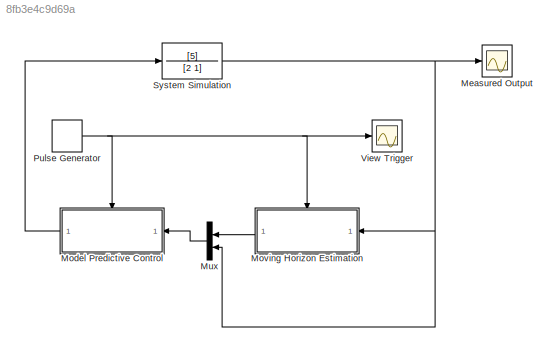
MODEL slx_8fb3e4c9d69a
KIND model
BLOCK [Scope] Measured Output
  DataFormat = StructureWithTime
  Floating = off
  NumInputPorts = 1
  Ports = [1]
  SampleTime = 0
  SaveName = ScopeData1
  ShowLegends = off
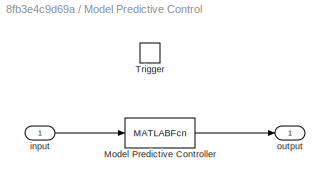
BLOCK [SubSystem] Model Predictive Control
  FunctionWithSeparateData = off
  MaskHideContents = off
  MinAlgLoopOccurrences = off
  Opaque = off
  Ports = [1, 1, 0, 1]
  PropExecContextOutsideSubsystem = off
  RTWSystemCode = Auto
  RequestExecContextInheritance = off
  TreatAsAtomicUnit = on
BLOCK [MATLABFcn] Model Predictive Control/Model Predictive Controller
  MATLABFcn = controller
  Ports = [1, 1]
BLOCK [TriggerPort] Model Predictive Control/Trigger
  Ports = []
  StatesWhenEnabling = held
BLOCK [Inport] Model Predictive Control/input
  IconDisplay = Port number
  PortDimensions = 2
BLOCK [Outport] Model Predictive Control/output
  IconDisplay = Port number
  PortDimensions = 1
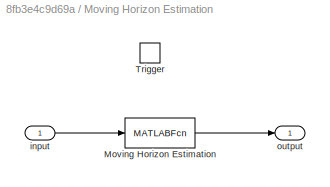
BLOCK [SubSystem] Moving Horizon Estimation
  FunctionWithSeparateData = off
  MaskHideContents = off
  MinAlgLoopOccurrences = off
  Opaque = off
  Ports = [1, 1, 0, 1]
  PropExecContextOutsideSubsystem = off
  RTWSystemCode = Auto
  RequestExecContextInheritance = off
  TreatAsAtomicUnit = on
BLOCK [MATLABFcn] Moving Horizon Estimation/Moving Horizon Estimation
  MATLABFcn = estimator
  Ports = [1, 1]
BLOCK [TriggerPort] Moving Horizon Estimation/Trigger
  Ports = []
  StatesWhenEnabling = held
BLOCK [Inport] Moving Horizon Estimation/input
  IconDisplay = Port number
  PortDimensions = 1
BLOCK [Outport] Moving Horizon Estimation/output
  IconDisplay = Port number
  PortDimensions = 1
BLOCK [Mux] Mux
  DisplayOption = bar
  Inputs = 2
  Ports = [2, 1]
BLOCK [DiscretePulseGenerator] Pulse Generator
  Period = 0.1
  Ports = [0, 1]
  PulseType = Time based
  PulseWidth = 10
BLOCK [TransferFcn] System Simulation
  Denominator = [2 1]
  Numerator = [5]
BLOCK [Scope] View Trigger
  DataFormat = StructureWithTime
  Floating = off
  NumInputPorts = 1
  Ports = [1]
  SampleTime = 0
  ShowLegends = off
LINE Model Predictive Control/Model Predictive Controller:1 -> Model Predictive Control/output:1
LINE Model Predictive Control/input:1 -> Model Predictive Control/Model Predictive Controller:1
LINE Model Predictive Control:1 -> System Simulation:1
LINE Moving Horizon Estimation/Moving Horizon Estimation:1 -> Moving Horizon Estimation/output:1
LINE Moving Horizon Estimation/input:1 -> Moving Horizon Estimation/Moving Horizon Estimation:1
LINE Moving Horizon Estimation:1 -> Mux:1
LINE Mux:1 -> Model Predictive Control:1
NET Pulse Generator:1 -> Model Predictive Control:trigger, Moving Horizon Estimation:trigger, View Trigger:1
NET System Simulation:1 -> Measured Output:1, Moving Horizon Estimation:1, Mux:2
note: NET lines group one-source signal fan-out (src -> all destinations, sorted); 1:1 wires keep LINE
